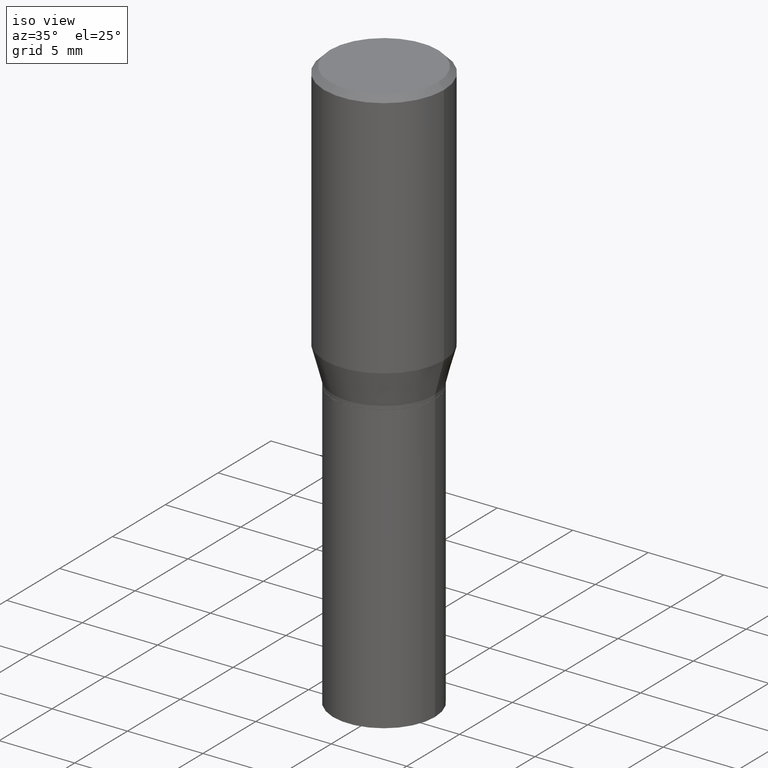
[diagram: clean part render]
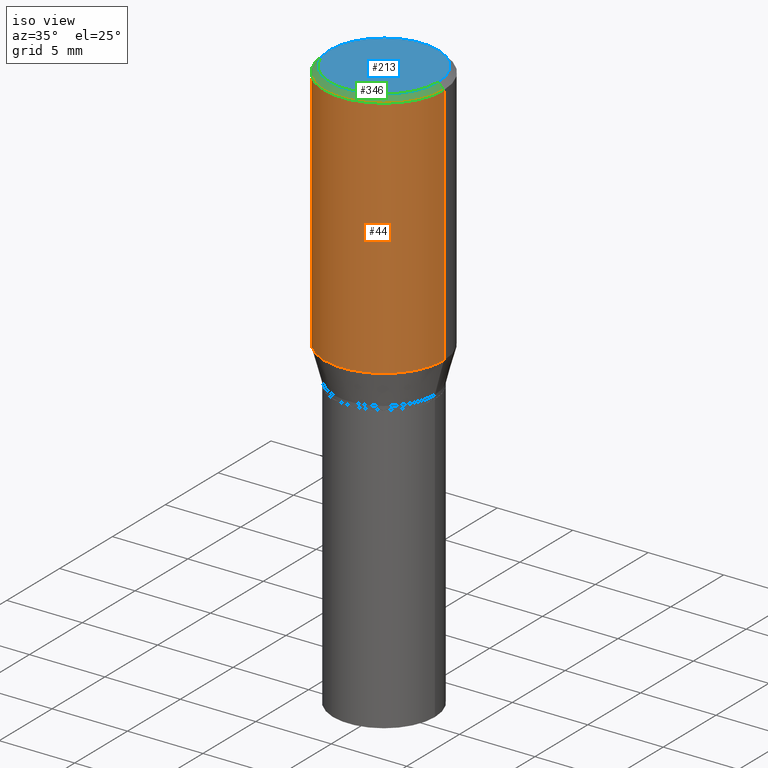
[diagram: same view with three faces highlighted in distinct colors, each labeled with its STEP entity id]
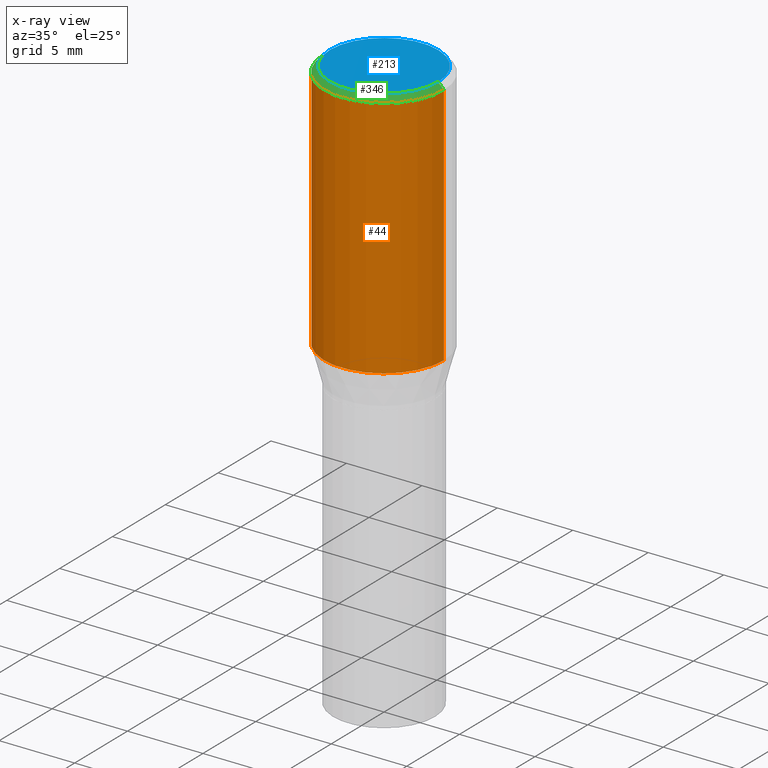
[diagram: x-ray of the same camera — body ghosted, the three highlighted faces saturated]
A machine part, iso view with three faces highlighted in distinct colors.
The next image is the same camera in x-ray (body ghosted, the three faces saturated) — at least one of them is partly hidden behind the body in this view.
Their STEP definitions:

[orange] entity #44 — the highlighted cylindrical surface (partial cylindrical patch) has radius 3.9688 mm, axis along (-0, 0, 1).
#1 = ORIENTED_EDGE ( 'NONE', *, *, #28, .T. ) ;
#7 = AXIS2_PLACEMENT_3D ( 'NONE', #216, #399, #40 ) ;
#9 = CIRCLE ( 'NONE', #271, 0.1562500000000000000 ) ;
#14 = CARTESIAN_POINT ( 'NONE',  ( 3.668203209277705088E-31, -5.237222008264718399E-17, -0.01499999999999999944 ) ) ;
#17 = VERTEX_POINT ( 'NONE', #20 ) ;
#18 = EDGE_CURVE ( 'NONE', #17, #317, #76, .T. ) ;
#20 = CARTESIAN_POINT ( 'NONE',  ( 0.1562500000000000000, -3.369221563289251454E-15, -0.6524834085625104141 ) ) ;
#28 = EDGE_CURVE ( 'NONE', #194, #17, #376, .T. ) ;
#32 = EDGE_CURVE ( 'NONE', #194, #88, #153, .T. ) ;
#36 = ORIENTED_EDGE ( 'NONE', *, *, #223, .F. ) ;
#40 = DIRECTION ( 'NONE',  ( 1.000000000000000000, -6.982962677686265133E-15, 0.000000000000000000 ) ) ;
#44 = ADVANCED_FACE ( 'NONE', ( #221 ), #363, .T. ) ;
#76 = LINE ( 'NONE', #160, #204 ) ;
#86 = ORIENTED_EDGE ( 'NONE', *, *, #32, .F. ) ;
#88 = VERTEX_POINT ( 'NONE', #257 ) ;
#124 = CARTESIAN_POINT ( 'NONE',  ( -0.1562500000000000000, -1.167910620275616332E-15, -0.6524834085625104141 ) ) ;
#153 = LINE ( 'NONE', #285, #443 ) ;
#157 = AXIS2_PLACEMENT_3D ( 'NONE', #199, #226, #386 ) ;
#160 = CARTESIAN_POINT ( 'NONE',  ( 0.1562500000000000000, -1.091087918388479174E-15, 7.619026212181150377E-30 ) ) ;
#178 = DIRECTION ( 'NONE',  ( 1.000000000000000000, -6.982962677686266711E-15, 0.000000000000000000 ) ) ;
#194 = VERTEX_POINT ( 'NONE', #124 ) ;
#199 = CARTESIAN_POINT ( 'NONE',  ( 0.000000000000000000, 0.000000000000000000, 0.000000000000000000 ) ) ;
#204 = VECTOR ( 'NONE', #451, 39.37007874015748143 ) ;
#216 = CARTESIAN_POINT ( 'NONE',  ( 1.595627822192971094E-29, -2.278133644900773069E-15, -0.6524834085625104141 ) ) ;
#221 = FACE_OUTER_BOUND ( 'NONE', #234, .T. ) ;
#223 = EDGE_CURVE ( 'NONE', #88, #317, #9, .T. ) ;
#226 = DIRECTION ( 'NONE',  ( -2.445468806185136597E-29, 3.491481338843145583E-15, 1.000000000000000000 ) ) ;
#234 = EDGE_LOOP ( 'NONE', ( #86, #1, #239, #36 ) ) ;
#239 = ORIENTED_EDGE ( 'NONE', *, *, #18, .T. ) ;
#257 = CARTESIAN_POINT ( 'NONE',  ( -0.1562500000000000000, -5.502990786655347834E-17, -0.01499999999999999944 ) ) ;
#271 = AXIS2_PLACEMENT_3D ( 'NONE', #14, #324, #178 ) ;
#285 = CARTESIAN_POINT ( 'NONE',  ( -0.1562500000000000000, 1.110223024625156540E-15, -7.685836078523291160E-30 ) ) ;
#317 = VERTEX_POINT ( 'NONE', #401 ) ;
#324 = DIRECTION ( 'NONE',  ( -2.445468806185136597E-29, 3.491481338843145583E-15, 1.000000000000000000 ) ) ;
#363 = CYLINDRICAL_SURFACE ( 'NONE', #157, 0.1562500000000000000 ) ;
#376 = CIRCLE ( 'NONE', #7, 0.1562500000000000000 ) ;
#386 = DIRECTION ( 'NONE',  ( 1.000000000000000000, -6.982962677686266711E-15, 4.876176775795936353E-29 ) ) ;
#399 = DIRECTION ( 'NONE',  ( -2.445468806185136597E-29, 3.491481338843145583E-15, 1.000000000000000000 ) ) ;
#401 = CARTESIAN_POINT ( 'NONE',  ( 0.1562500000000000000, -1.143460138471126253E-15, -0.01499999999999999944 ) ) ;
#439 = DIRECTION ( 'NONE',  ( -2.445468806185136877E-29, 3.491481338843145188E-15, 1.000000000000000000 ) ) ;
#443 = VECTOR ( 'NONE', #439, 39.37007874015748143 ) ;
#451 = DIRECTION ( 'NONE',  ( -2.445468806185136877E-29, 3.491481338843145188E-15, 1.000000000000000000 ) ) ;

[blue] entity #213 — the highlighted planar face has unit normal (0, -0, -1).
#51 = DIRECTION ( 'NONE',  ( -2.445468806185136597E-29, 3.491481338843145583E-15, 1.000000000000000000 ) ) ;
#105 = CIRCLE ( 'NONE', #447, 0.1412500000000000144 ) ;
#111 = PLANE ( 'NONE',  #355 ) ;
#117 = ORIENTED_EDGE ( 'NONE', *, *, #320, .T. ) ;
#152 = CARTESIAN_POINT ( 'NONE',  ( 1.066899386337773103E-45, -1.523249566054587316E-31, -4.362760153142606033E-17 ) ) ;
#165 = CARTESIAN_POINT ( 'NONE',  ( 1.066899386337773103E-45, -1.523249566054587316E-31, -4.362760153142606033E-17 ) ) ;
#213 = ADVANCED_FACE ( 'NONE', ( #452 ), #111, .F. ) ;
#219 = DIRECTION ( 'NONE',  ( 2.438088387897960049E-29, -3.491481338843145188E-15, -1.000000000000000000 ) ) ;
#245 = CARTESIAN_POINT ( 'NONE',  ( 9.863434782231852123E-16, 0.1412500000000000144, -5.149855398773074051E-16 ) ) ;
#250 = DIRECTION ( 'NONE',  ( 1.000000000000000000, -6.982962677686265922E-15, 4.874209154772796007E-29 ) ) ;
#268 = EDGE_CURVE ( 'NONE', #417, #409, #368, .T. ) ;
#269 = CARTESIAN_POINT ( 'NONE',  ( 0.1412500000000000144, -1.046685187209839144E-15, -4.362760153141894826E-17 ) ) ;
#273 = ORIENTED_EDGE ( 'NONE', *, *, #268, .T. ) ;
#284 = DIRECTION ( 'NONE',  ( -2.445468806185136597E-29, 3.491481338843145583E-15, 1.000000000000000000 ) ) ;
#320 = EDGE_CURVE ( 'NONE', #409, #417, #105, .T. ) ;
#326 = AXIS2_PLACEMENT_3D ( 'NONE', #152, #284, #354 ) ;
#354 = DIRECTION ( 'NONE',  ( 1.000000000000000000, -6.982962677686265922E-15, 4.874209154772796007E-29 ) ) ;
#355 = AXIS2_PLACEMENT_3D ( 'NONE', #245, #219, #362 ) ;
#362 = DIRECTION ( 'NONE',  ( -1.000000000000000000, 6.982962677686265922E-15, -4.876176775795935793E-29 ) ) ;
#368 = CIRCLE ( 'NONE', #326, 0.1412500000000000144 ) ;
#409 = VERTEX_POINT ( 'NONE', #466 ) ;
#417 = VERTEX_POINT ( 'NONE', #269 ) ;
#442 = EDGE_LOOP ( 'NONE', ( #117, #273 ) ) ;
#447 = AXIS2_PLACEMENT_3D ( 'NONE', #165, #51, #250 ) ;
#452 = FACE_OUTER_BOUND ( 'NONE', #442, .T. ) ;
#466 = CARTESIAN_POINT ( 'NONE',  ( -0.1412500000000000144, 1.012529588264508555E-15, -4.362760153143304915E-17 ) ) ;

[green] entity #346 — the highlighted conical surface has half-angle 45 deg.
#9 = CIRCLE ( 'NONE', #271, 0.1562500000000000000 ) ;
#13 = DIRECTION ( 'NONE',  ( 0.7071067811865483499, -7.319954787623257623E-15, -0.7071067811865466846 ) ) ;
#14 = CARTESIAN_POINT ( 'NONE',  ( 3.668203209277705088E-31, -5.237222008264718399E-17, -0.01499999999999999944 ) ) ;
#23 = DIRECTION ( 'NONE',  ( -0.7071067811865483499, 2.468850131082265738E-15, -0.7071067811865466846 ) ) ;
#51 = DIRECTION ( 'NONE',  ( -2.445468806185136597E-29, 3.491481338843145583E-15, 1.000000000000000000 ) ) ;
#54 = EDGE_LOOP ( 'NONE', ( #80, #435, #261, #365 ) ) ;
#80 = ORIENTED_EDGE ( 'NONE', *, *, #289, .F. ) ;
#88 = VERTEX_POINT ( 'NONE', #257 ) ;
#105 = CIRCLE ( 'NONE', #447, 0.1412500000000000144 ) ;
#107 = CARTESIAN_POINT ( 'NONE',  ( 0.1562500000000000000, -1.124325032234449083E-15, -0.01499999999999999944 ) ) ;
#135 = AXIS2_PLACEMENT_3D ( 'NONE', #349, #170, #270 ) ;
#165 = CARTESIAN_POINT ( 'NONE',  ( 1.066899386337773103E-45, -1.523249566054587316E-31, -4.362760153142606033E-17 ) ) ;
#166 = CARTESIAN_POINT ( 'NONE',  ( -0.1562500000000000000, 1.038715698305832094E-15, -0.01499999999999999944 ) ) ;
#170 = DIRECTION ( 'NONE',  ( 2.445468806185136597E-29, -3.491481338843145583E-15, -1.000000000000000000 ) ) ;
#178 = DIRECTION ( 'NONE',  ( 1.000000000000000000, -6.982962677686266711E-15, 0.000000000000000000 ) ) ;
#202 = FACE_OUTER_BOUND ( 'NONE', #54, .T. ) ;
#223 = EDGE_CURVE ( 'NONE', #88, #317, #9, .T. ) ;
#250 = DIRECTION ( 'NONE',  ( 1.000000000000000000, -6.982962677686265922E-15, 4.874209154772796007E-29 ) ) ;
#256 = LINE ( 'NONE', #166, #361 ) ;
#257 = CARTESIAN_POINT ( 'NONE',  ( -0.1562500000000000000, -5.502990786655347834E-17, -0.01499999999999999944 ) ) ;
#261 = ORIENTED_EDGE ( 'NONE', *, *, #310, .T. ) ;
#269 = CARTESIAN_POINT ( 'NONE',  ( 0.1412500000000000144, -1.046685187209839144E-15, -4.362760153141894826E-17 ) ) ;
#270 = DIRECTION ( 'NONE',  ( -1.000000000000000000, 6.982962677686266711E-15, 0.000000000000000000 ) ) ;
#271 = AXIS2_PLACEMENT_3D ( 'NONE', #14, #324, #178 ) ;
#289 = EDGE_CURVE ( 'NONE', #417, #317, #330, .T. ) ;
#308 = VECTOR ( 'NONE', #13, 39.37007874015748143 ) ;
#310 = EDGE_CURVE ( 'NONE', #409, #88, #256, .T. ) ;
#313 = CONICAL_SURFACE ( 'NONE', #135, 0.1562500000000000000, 0.7853981633974495002 ) ;
#317 = VERTEX_POINT ( 'NONE', #401 ) ;
#320 = EDGE_CURVE ( 'NONE', #409, #417, #105, .T. ) ;
#324 = DIRECTION ( 'NONE',  ( -2.445468806185136597E-29, 3.491481338843145583E-15, 1.000000000000000000 ) ) ;
#330 = LINE ( 'NONE', #107, #308 ) ;
#346 = ADVANCED_FACE ( 'NONE', ( #202 ), #313, .T. ) ;
#349 = CARTESIAN_POINT ( 'NONE',  ( 3.668203209277705088E-31, -5.237222008264718399E-17, -0.01499999999999999944 ) ) ;
#361 = VECTOR ( 'NONE', #23, 39.37007874015748143 ) ;
#365 = ORIENTED_EDGE ( 'NONE', *, *, #223, .T. ) ;
#401 = CARTESIAN_POINT ( 'NONE',  ( 0.1562500000000000000, -1.143460138471126253E-15, -0.01499999999999999944 ) ) ;
#409 = VERTEX_POINT ( 'NONE', #466 ) ;
#417 = VERTEX_POINT ( 'NONE', #269 ) ;
#435 = ORIENTED_EDGE ( 'NONE', *, *, #320, .F. ) ;
#447 = AXIS2_PLACEMENT_3D ( 'NONE', #165, #51, #250 ) ;
#466 = CARTESIAN_POINT ( 'NONE',  ( -0.1412500000000000144, 1.012529588264508555E-15, -4.362760153143304915E-17 ) ) ;